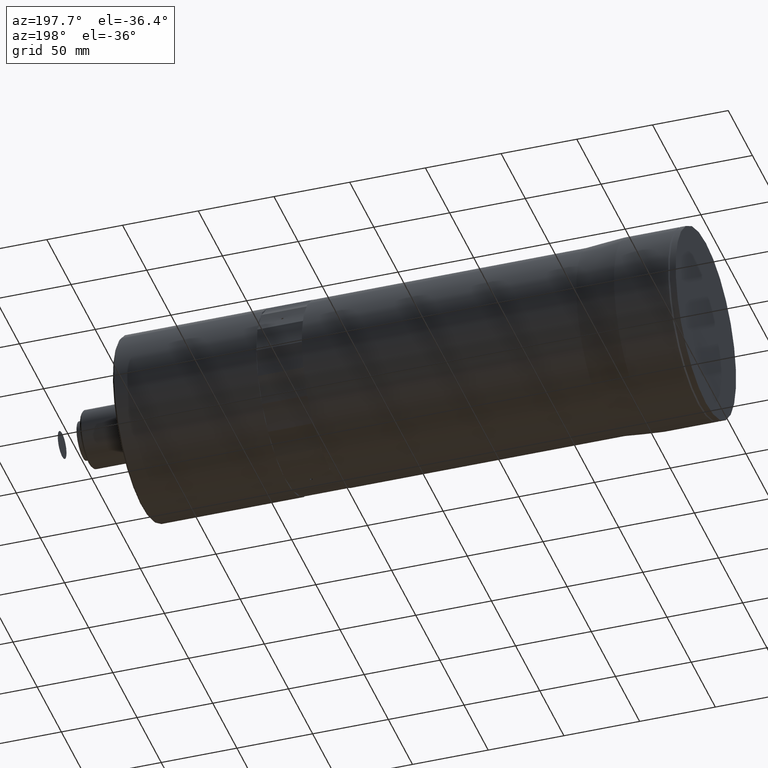
[diagram: clean part render]
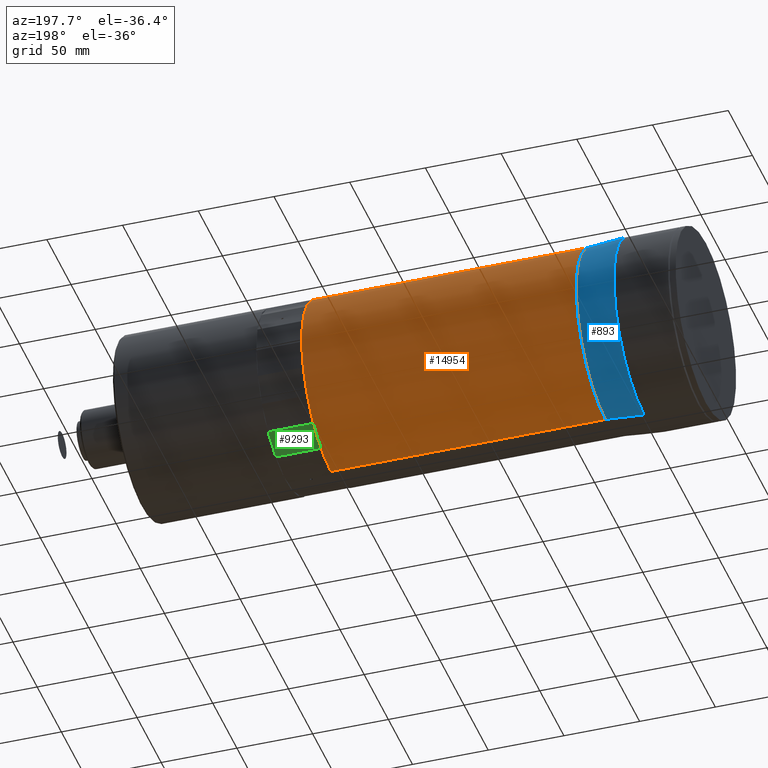
[diagram: same view with three faces highlighted in distinct colors, each labeled with its STEP entity id]
A machine part, auxiliary view with three faces highlighted in distinct colors.
Their STEP definitions:

[orange] entity #14954 — the highlighted cylindrical surface (partial cylindrical patch) has radius 60.5 mm, axis along (-1, -0, -0).
#497 = CIRCLE ( 'NONE', #17440, 60.49999999999995000 ) ;
#1191 = DIRECTION ( 'NONE',  ( -1.000000000000000000, -0.0000000000000000000, -0.0000000000000000000 ) ) ;
#1443 = EDGE_CURVE ( 'NONE', #5150, #12646, #497, .T. ) ;
#3333 = ORIENTED_EDGE ( 'NONE', *, *, #16268, .T. ) ;
#3609 = CARTESIAN_POINT ( 'NONE',  ( -125.8137890602518100, 0.0000000000000000000, 0.0000000000000000000 ) ) ;
#4257 = LINE ( 'NONE', #4869, #21145 ) ;
#4332 = ORIENTED_EDGE ( 'NONE', *, *, #14856, .F. ) ;
#4509 = DIRECTION ( 'NONE',  ( 0.0000000000000000000, 0.0000000000000000000, 1.000000000000000000 ) ) ;
#4869 = CARTESIAN_POINT ( 'NONE',  ( -125.8137890602518100, 0.0000000000000000000, 60.49999999999995000 ) ) ;
#4946 = CARTESIAN_POINT ( 'NONE',  ( -125.8137890602518100, 7.409113134841481200E-015, -60.49999999999995000 ) ) ;
#5150 = VERTEX_POINT ( 'NONE', #10868 ) ;
#5183 = DIRECTION ( 'NONE',  ( 0.0000000000000000000, 0.0000000000000000000, 1.000000000000000000 ) ) ;
#5242 = VERTEX_POINT ( 'NONE', #16753 ) ;
#5645 = CARTESIAN_POINT ( 'NONE',  ( -223.2195510870452900, 0.0000000000000000000, 0.0000000000000000000 ) ) ;
#7007 = VERTEX_POINT ( 'NONE', #9556 ) ;
#7898 = CYLINDRICAL_SURFACE ( 'NONE', #19669, 60.49999999999995000 ) ;
#8385 = ORIENTED_EDGE ( 'NONE', *, *, #1443, .F. ) ;
#9408 = AXIS2_PLACEMENT_3D ( 'NONE', #17693, #1191, #21174 ) ;
#9556 = CARTESIAN_POINT ( 'NONE',  ( -41.88266625839381900, 7.409113134841481200E-015, -60.49999999999995000 ) ) ;
#10443 = DIRECTION ( 'NONE',  ( -1.000000000000000000, -0.0000000000000000000, -0.0000000000000000000 ) ) ;
#10868 = CARTESIAN_POINT ( 'NONE',  ( -223.2195510870452900, 0.0000000000000000000, 60.49999999999995000 ) ) ;
#11665 = EDGE_LOOP ( 'NONE', ( #3333, #16968, #8385, #4332 ) ) ;
#12646 = VERTEX_POINT ( 'NONE', #21643 ) ;
#12864 = DIRECTION ( 'NONE',  ( -1.000000000000000000, -0.0000000000000000000, -0.0000000000000000000 ) ) ;
#13676 = DIRECTION ( 'NONE',  ( -1.000000000000000000, -0.0000000000000000000, -0.0000000000000000000 ) ) ;
#14856 = EDGE_CURVE ( 'NONE', #5242, #5150, #4257, .T. ) ;
#14954 = ADVANCED_FACE ( 'NONE', ( #23125 ), #7898, .T. ) ;
#15152 = VECTOR ( 'NONE', #10443, 1000.000000000000000 ) ;
#15698 = CIRCLE ( 'NONE', #9408, 60.49999999999995000 ) ;
#16007 = DIRECTION ( 'NONE',  ( -1.000000000000000000, -0.0000000000000000000, -0.0000000000000000000 ) ) ;
#16268 = EDGE_CURVE ( 'NONE', #5242, #7007, #15698, .T. ) ;
#16276 = LINE ( 'NONE', #4946, #15152 ) ;
#16753 = CARTESIAN_POINT ( 'NONE',  ( -41.88266625839381900, 0.0000000000000000000, 60.49999999999995000 ) ) ;
#16968 = ORIENTED_EDGE ( 'NONE', *, *, #21507, .T. ) ;
#17440 = AXIS2_PLACEMENT_3D ( 'NONE', #5645, #12864, #4509 ) ;
#17693 = CARTESIAN_POINT ( 'NONE',  ( -41.88266625839381900, 0.0000000000000000000, 0.0000000000000000000 ) ) ;
#19669 = AXIS2_PLACEMENT_3D ( 'NONE', #3609, #16007, #5183 ) ;
#21145 = VECTOR ( 'NONE', #13676, 1000.000000000000000 ) ;
#21174 = DIRECTION ( 'NONE',  ( 0.0000000000000000000, 0.0000000000000000000, 1.000000000000000000 ) ) ;
#21507 = EDGE_CURVE ( 'NONE', #7007, #12646, #16276, .T. ) ;
#21643 = CARTESIAN_POINT ( 'NONE',  ( -223.2195510870452900, 7.409113134841481200E-015, -60.49999999999995000 ) ) ;
#23125 = FACE_OUTER_BOUND ( 'NONE', #11665, .T. ) ;

[blue] entity #893 — the highlighted conical surface has half-angle 4.485 deg.
#276 = DIRECTION ( 'NONE',  ( -1.000000000000000000, -0.0000000000000000000, -0.0000000000000000000 ) ) ;
#497 = CIRCLE ( 'NONE', #17440, 60.49999999999995000 ) ;
#816 = AXIS2_PLACEMENT_3D ( 'NONE', #20859, #22307, #11495 ) ;
#893 = ADVANCED_FACE ( 'NONE', ( #17085 ), #11486, .T. ) ;
#1443 = EDGE_CURVE ( 'NONE', #5150, #12646, #497, .T. ) ;
#2562 = VECTOR ( 'NONE', #4329, 1000.000000000000100 ) ;
#2704 = CARTESIAN_POINT ( 'NONE',  ( -223.2195510870452900, 7.409113134841481200E-015, -60.49999999999995000 ) ) ;
#4329 = DIRECTION ( 'NONE',  ( -0.9969377742000536900, 9.576608278861315700E-018, -0.07819894099693824900 ) ) ;
#4457 = EDGE_CURVE ( 'NONE', #5150, #8561, #14930, .T. ) ;
#4509 = DIRECTION ( 'NONE',  ( 0.0000000000000000000, 0.0000000000000000000, 1.000000000000000000 ) ) ;
#5150 = VERTEX_POINT ( 'NONE', #10868 ) ;
#5486 = EDGE_CURVE ( 'NONE', #12646, #11844, #22830, .T. ) ;
#5635 = DIRECTION ( 'NONE',  ( 0.0000000000000000000, 0.0000000000000000000, 1.000000000000000000 ) ) ;
#5645 = CARTESIAN_POINT ( 'NONE',  ( -223.2195510870452900, 0.0000000000000000000, 0.0000000000000000000 ) ) ;
#6106 = ORIENTED_EDGE ( 'NONE', *, *, #4457, .F. ) ;
#8561 = VERTEX_POINT ( 'NONE', #15393 ) ;
#10868 = CARTESIAN_POINT ( 'NONE',  ( -223.2195510870452900, 0.0000000000000000000, 60.49999999999995000 ) ) ;
#10896 = DIRECTION ( 'NONE',  ( -0.9969377742000536900, 0.0000000000000000000, 0.07819894099693824900 ) ) ;
#11486 = CONICAL_SURFACE ( 'NONE', #20326, 60.49999999999995000, 0.07827885983553824200 ) ;
#11495 = DIRECTION ( 'NONE',  ( 0.0000000000000000000, 0.0000000000000000000, 1.000000000000000000 ) ) ;
#11844 = VERTEX_POINT ( 'NONE', #14994 ) ;
#12413 = VECTOR ( 'NONE', #10896, 1000.000000000000100 ) ;
#12646 = VERTEX_POINT ( 'NONE', #21643 ) ;
#12864 = DIRECTION ( 'NONE',  ( -1.000000000000000000, -0.0000000000000000000, -0.0000000000000000000 ) ) ;
#13343 = ORIENTED_EDGE ( 'NONE', *, *, #5486, .T. ) ;
#14570 = CARTESIAN_POINT ( 'NONE',  ( -223.2195510870452900, 0.0000000000000000000, 0.0000000000000000000 ) ) ;
#14664 = EDGE_CURVE ( 'NONE', #8561, #11844, #17175, .T. ) ;
#14930 = LINE ( 'NONE', #21876, #12413 ) ;
#14994 = CARTESIAN_POINT ( 'NONE',  ( -248.7170261548746700, 7.654042494670949900E-015, -62.49999999999993600 ) ) ;
#15393 = CARTESIAN_POINT ( 'NONE',  ( -248.7170261548746700, 0.0000000000000000000, 62.49999999999993600 ) ) ;
#15503 = EDGE_LOOP ( 'NONE', ( #21607, #13343, #17001, #6106 ) ) ;
#17001 = ORIENTED_EDGE ( 'NONE', *, *, #14664, .F. ) ;
#17085 = FACE_OUTER_BOUND ( 'NONE', #15503, .T. ) ;
#17175 = CIRCLE ( 'NONE', #816, 62.49999999999993600 ) ;
#17440 = AXIS2_PLACEMENT_3D ( 'NONE', #5645, #12864, #4509 ) ;
#20326 = AXIS2_PLACEMENT_3D ( 'NONE', #14570, #276, #5635 ) ;
#20859 = CARTESIAN_POINT ( 'NONE',  ( -248.7170261548746700, 0.0000000000000000000, 0.0000000000000000000 ) ) ;
#21607 = ORIENTED_EDGE ( 'NONE', *, *, #1443, .T. ) ;
#21643 = CARTESIAN_POINT ( 'NONE',  ( -223.2195510870452900, 7.409113134841481200E-015, -60.49999999999995000 ) ) ;
#21876 = CARTESIAN_POINT ( 'NONE',  ( -223.2195510870452900, 0.0000000000000000000, 60.49999999999995000 ) ) ;
#22307 = DIRECTION ( 'NONE',  ( -1.000000000000000000, -0.0000000000000000000, -0.0000000000000000000 ) ) ;
#22830 = LINE ( 'NONE', #2704, #2562 ) ;

[green] entity #9293 — the highlighted cylindrical surface (partial cylindrical patch) has radius 75 mm, axis along (-1, -0, 0).
#579 = DIRECTION ( 'NONE',  ( -1.000000000000000000, 0.0000000000000000000, 0.0000000000000000000 ) ) ;
#1273 = EDGE_LOOP ( 'NONE', ( #13203, #20974, #14096, #9180 ) ) ;
#1687 = VERTEX_POINT ( 'NONE', #15195 ) ;
#2076 = DIRECTION ( 'NONE',  ( 0.0000000000000000000, -0.4338837391175653400, -0.9009688679024157000 ) ) ;
#2407 = VECTOR ( 'NONE', #579, 1000.000000000000000 ) ;
#2459 = AXIS2_PLACEMENT_3D ( 'NONE', #10221, #11959, #22843 ) ;
#4320 = VERTEX_POINT ( 'NONE', #19653 ) ;
#4912 = DIRECTION ( 'NONE',  ( 0.0000000000000000000, -0.4338837391175653400, -0.9009688679024157000 ) ) ;
#5694 = CYLINDRICAL_SURFACE ( 'NONE', #19149, 75.00000000000004300 ) ;
#6036 = DIRECTION ( 'NONE',  ( 1.000000000000000000, -0.0000000000000000000, -0.0000000000000000000 ) ) ;
#6575 = CARTESIAN_POINT ( 'NONE',  ( -75.37400950865325900, -121.0001189592944300, 58.27058616348900700 ) ) ;
#8269 = LINE ( 'NONE', #14950, #2407 ) ;
#8410 = DIRECTION ( 'NONE',  ( -1.000000000000000000, 0.0000000000000000000, 0.0000000000000000000 ) ) ;
#9021 = CARTESIAN_POINT ( 'NONE',  ( -95.37400950865325900, -50.02898114631202000, 34.01986251386030300 ) ) ;
#9180 = ORIENTED_EDGE ( 'NONE', *, *, #19581, .F. ) ;
#9293 = ADVANCED_FACE ( 'NONE', ( #16928 ), #5694, .F. ) ;
#10032 = DIRECTION ( 'NONE',  ( -1.000000000000000000, 0.0000000000000000000, 0.0000000000000000000 ) ) ;
#10221 = CARTESIAN_POINT ( 'NONE',  ( -125.3740095086532700, -121.0001189592944300, 58.27058616348900700 ) ) ;
#10649 = EDGE_CURVE ( 'NONE', #4320, #1687, #14603, .T. ) ;
#11959 = DIRECTION ( 'NONE',  ( -1.000000000000000000, -0.0000000000000000000, 0.0000000000000000000 ) ) ;
#13203 = ORIENTED_EDGE ( 'NONE', *, *, #10649, .T. ) ;
#14096 = ORIENTED_EDGE ( 'NONE', *, *, #19369, .F. ) ;
#14377 = CARTESIAN_POINT ( 'NONE',  ( -95.37400950865325900, -57.79035908467807300, 17.90319515795902200 ) ) ;
#14603 = CIRCLE ( 'NONE', #2459, 75.00000000000004300 ) ;
#14750 = CARTESIAN_POINT ( 'NONE',  ( -100.3740095086532700, -50.02898114631201300, 34.01986251386029600 ) ) ;
#14950 = CARTESIAN_POINT ( 'NONE',  ( -100.3740095086532700, -57.79035908467806600, 17.90319515795902200 ) ) ;
#15195 = CARTESIAN_POINT ( 'NONE',  ( -125.3740095086532700, -57.79035908467808000, 17.90319515795894700 ) ) ;
#16803 = AXIS2_PLACEMENT_3D ( 'NONE', #19214, #8410, #2076 ) ;
#16922 = VECTOR ( 'NONE', #6036, 1000.000000000000000 ) ;
#16928 = FACE_OUTER_BOUND ( 'NONE', #1273, .T. ) ;
#17111 = VERTEX_POINT ( 'NONE', #9021 ) ;
#18439 = VERTEX_POINT ( 'NONE', #14377 ) ;
#19149 = AXIS2_PLACEMENT_3D ( 'NONE', #6575, #10032, #4912 ) ;
#19214 = CARTESIAN_POINT ( 'NONE',  ( -95.37400950865325900, -121.0001189592944300, 58.27058616348900700 ) ) ;
#19257 = EDGE_CURVE ( 'NONE', #18439, #1687, #8269, .T. ) ;
#19369 = EDGE_CURVE ( 'NONE', #17111, #18439, #20089, .T. ) ;
#19581 = EDGE_CURVE ( 'NONE', #4320, #17111, #21752, .T. ) ;
#19653 = CARTESIAN_POINT ( 'NONE',  ( -125.3740095086532700, -50.02898114631197800, 34.01986251386036700 ) ) ;
#20089 = CIRCLE ( 'NONE', #16803, 75.00000000000004300 ) ;
#20974 = ORIENTED_EDGE ( 'NONE', *, *, #19257, .F. ) ;
#21752 = LINE ( 'NONE', #14750, #16922 ) ;
#22843 = DIRECTION ( 'NONE',  ( 0.0000000000000000000, -0.4338837391175653400, -0.9009688679024157000 ) ) ;